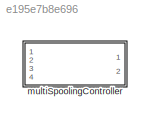
MODEL slx_e195e7b8e696
KIND library
CONFIG AbsTol = auto
CONFIG EnableMultiTasking = off
CONFIG FixedStep = auto
CONFIG MaxStep = auto
CONFIG MinStep = auto
CONFIG RelTol = 1e-3
CONFIG SampleTimeConstraint = Unconstrained
CONFIG Solver = VariableStepAuto
CONFIG SolverName = VariableStepAuto
CONFIG StartTime = 0.0
CONFIG StopTime = 10.0
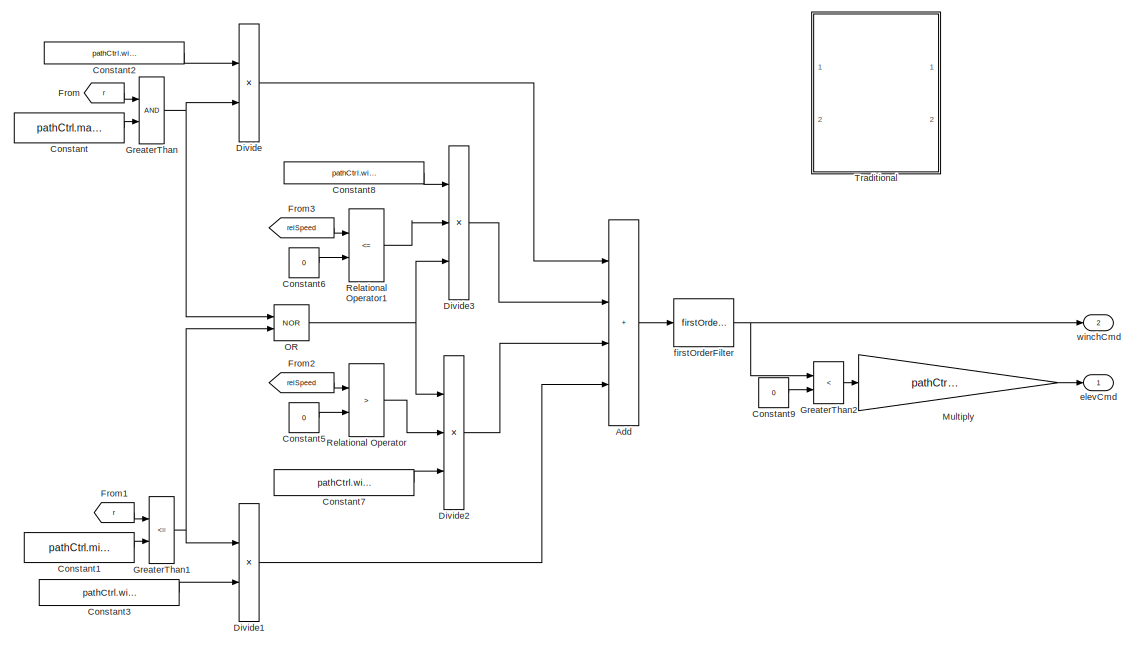
[diagram: multiSpoolingController - part 1/2, center side, full height]
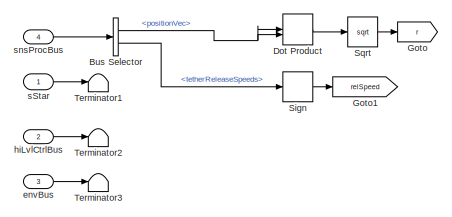
[diagram: multiSpoolingController - part 2/2, middle left region]
BLOCK [SubSystem] multiSpoolingController
  Ports = [4, 2]
  RequestExecContextInheritance = off
BLOCK [Sum] multiSpoolingController/Add
  IconShape = rectangular
  Inputs = ++++
  Ports = [4, 1]
BLOCK [BusSelector] multiSpoolingController/Bus Selector
  OutputSignals = positionVec,tetherReleaseSpeeds
  Ports = [1, 2]
BLOCK [Constant] multiSpoolingController/Constant
  Value = pathCtrl.maxR.Value
BLOCK [Constant] multiSpoolingController/Constant1
  Value = pathCtrl.minR.Value
BLOCK [Constant] multiSpoolingController/Constant2
  Value = pathCtrl.winchSpeedIn.Value
BLOCK [Constant] multiSpoolingController/Constant3
  Value = pathCtrl.winchSpeedOut.Value
BLOCK [Constant] multiSpoolingController/Constant5
  Value = 0
BLOCK [Constant] multiSpoolingController/Constant6
  Value = 0
BLOCK [Constant] multiSpoolingController/Constant7
  Value = pathCtrl.winchSpeedOut.Value
BLOCK [Constant] multiSpoolingController/Constant8
  Value = pathCtrl.winchSpeedIn.Value
BLOCK [Constant] multiSpoolingController/Constant9
  Value = 0
BLOCK [Product] multiSpoolingController/Divide
  Inputs = **
  OutDataTypeStr = double
  Ports = [2, 1]
BLOCK [Product] multiSpoolingController/Divide1
  Inputs = **
  OutDataTypeStr = double
  Ports = [2, 1]
BLOCK [Product] multiSpoolingController/Divide2
  Inputs = ***
  OutDataTypeStr = double
  Ports = [3, 1]
BLOCK [Product] multiSpoolingController/Divide3
  Inputs = ***
  OutDataTypeStr = double
  Ports = [3, 1]
BLOCK [DotProduct] multiSpoolingController/Dot Product
  OutDataTypeStr = Inherit: Inherit via internal rule
BLOCK [From] multiSpoolingController/From
  GotoTag = r
BLOCK [From] multiSpoolingController/From1
  GotoTag = r
BLOCK [From] multiSpoolingController/From2
  GotoTag = relSpeed
BLOCK [From] multiSpoolingController/From3
  GotoTag = relSpeed
BLOCK [Goto] multiSpoolingController/Goto
  GotoTag = r
BLOCK [Goto] multiSpoolingController/Goto1
  GotoTag = relSpeed
BLOCK [RelationalOperator] multiSpoolingController/GreaterThan
  InputSameDT = off
  OutDataTypeStr = boolean
  Ports = [2, 1]
  RndMeth = Simplest
BLOCK [RelationalOperator] multiSpoolingController/GreaterThan1
  InputSameDT = off
  Operator = <=
  OutDataTypeStr = boolean
  Ports = [2, 1]
  RndMeth = Simplest
BLOCK [RelationalOperator] multiSpoolingController/GreaterThan2
  InputSameDT = off
  Operator = <
  OutDataTypeStr = boolean
  Ports = [2, 1]
  RndMeth = Simplest
BLOCK [Gain] multiSpoolingController/Multiply
  Gain = pathCtrl.elevatorReelInDef.Value
  OutDataTypeStr = double
BLOCK [Logic] multiSpoolingController/OR
  AllPortsSameDT = off
  Operator = NOR
  OutDataTypeStr = boolean
  Ports = [2, 1]
BLOCK [RelationalOperator] multiSpoolingController/Relational Operator
  InputSameDT = off
  Operator = >
  OutDataTypeStr = boolean
  Ports = [2, 1]
  RndMeth = Simplest
BLOCK [RelationalOperator] multiSpoolingController/Relational Operator1
  InputSameDT = off
  Operator = <=
  OutDataTypeStr = boolean
  Ports = [2, 1]
  RndMeth = Simplest
BLOCK [Signum] multiSpoolingController/Sign
BLOCK [Sqrt] multiSpoolingController/Sqrt
BLOCK [Terminator] multiSpoolingController/Terminator1
BLOCK [Terminator] multiSpoolingController/Terminator2
BLOCK [Terminator] multiSpoolingController/Terminator3
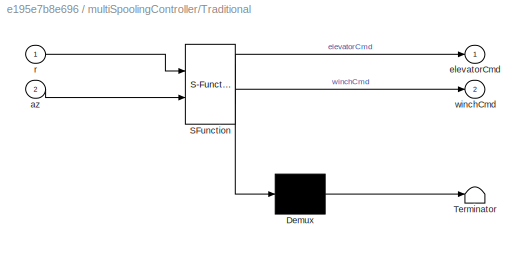
BLOCK [SubSystem] multiSpoolingController/Traditional
  Commented = on
  ErrorFcn = Stateflow.Translate.translate
  PermitHierarchicalResolution = ExplicitOnly
  Ports = [2, 2]
  RequestExecContextInheritance = off
  SFBlockType = Chart
  TreatAsAtomicUnit = on
BLOCK [Demux] multiSpoolingController/Traditional/ Demux 
  Outputs = 1
  Ports = [1, 1]
BLOCK [S-Function] multiSpoolingController/Traditional/ SFunction 
  EnableBusSupport = off
  FunctionName = sf_sfun
  Parameters = elevatorReelInDef,maxR,minR,winchSpeedIn,winchSpeedOut
  PortCounts = [2 3]
  Ports = [2, 3]
  SFcnIsStateOwnerBlock = off
  SFunctionDeploymentMode = off
  Tag = Stateflow S-Function 3
BLOCK [Terminator] multiSpoolingController/Traditional/ Terminator 
BLOCK [Inport] multiSpoolingController/Traditional/az
  Port = 2
BLOCK [Outport] multiSpoolingController/Traditional/elevatorCmd
  VectorParamsAs1DForOutWhenUnconnected = off
BLOCK [Inport] multiSpoolingController/Traditional/r
BLOCK [Outport] multiSpoolingController/Traditional/winchCmd
  Port = 2
  VectorParamsAs1DForOutWhenUnconnected = off
BLOCK [Outport] multiSpoolingController/elevCmd
  VectorParamsAs1DForOutWhenUnconnected = off
BLOCK [Inport] multiSpoolingController/envBus
  OutDataTypeStr = Bus: envBus
  Port = 3
BLOCK [Reference] multiSpoolingController/firstOrderFilter  REF=firstOrderFilter_ul/firstOrderFilter
  Ports = [1, 1]
  SourceBlock = firstOrderFilter_ul/firstOrderFilter
BLOCK [Inport] multiSpoolingController/hiLvlCtrlBus
  OutDataTypeStr = Bus: hiLvlCtrlBus
  Port = 2
BLOCK [Inport] multiSpoolingController/sStar 
BLOCK [Inport] multiSpoolingController/snsProcBus
  OutDataTypeStr = Bus: sensorsProcessingBus
  Port = 4
BLOCK [Outport] multiSpoolingController/winchCmd 
  Port = 2
  VectorParamsAs1DForOutWhenUnconnected = off
LINE multiSpoolingController/Add:1 -> multiSpoolingController/firstOrderFilter:1
NET multiSpoolingController/Bus Selector:1 -> multiSpoolingController/Dot Product:1, multiSpoolingController/Dot Product:2
LINE multiSpoolingController/Bus Selector:2 -> multiSpoolingController/Sign:1
LINE multiSpoolingController/Constant1:1 -> multiSpoolingController/GreaterThan1:2
LINE multiSpoolingController/Constant2:1 -> multiSpoolingController/Divide:1
LINE multiSpoolingController/Constant3:1 -> multiSpoolingController/Divide1:2
LINE multiSpoolingController/Constant5:1 -> multiSpoolingController/Relational Operator:2
LINE multiSpoolingController/Constant6:1 -> multiSpoolingController/Relational Operator1:2
LINE multiSpoolingController/Constant7:1 -> multiSpoolingController/Divide2:3
LINE multiSpoolingController/Constant8:1 -> multiSpoolingController/Divide3:1
LINE multiSpoolingController/Constant9:1 -> multiSpoolingController/GreaterThan2:2
LINE multiSpoolingController/Constant:1 -> multiSpoolingController/GreaterThan:2
LINE multiSpoolingController/Divide1:1 -> multiSpoolingController/Add:4
LINE multiSpoolingController/Divide2:1 -> multiSpoolingController/Add:3
LINE multiSpoolingController/Divide3:1 -> multiSpoolingController/Add:2
LINE multiSpoolingController/Divide:1 -> multiSpoolingController/Add:1
LINE multiSpoolingController/Dot Product:1 -> multiSpoolingController/Sqrt:1
LINE multiSpoolingController/From1:1 -> multiSpoolingController/GreaterThan1:1
LINE multiSpoolingController/From2:1 -> multiSpoolingController/Relational Operator:1
LINE multiSpoolingController/From3:1 -> multiSpoolingController/Relational Operator1:1
LINE multiSpoolingController/From:1 -> multiSpoolingController/GreaterThan:1
NET multiSpoolingController/GreaterThan1:1 -> multiSpoolingController/Divide1:1, multiSpoolingController/OR:2
LINE multiSpoolingController/GreaterThan2:1 -> multiSpoolingController/Multiply:1
NET multiSpoolingController/GreaterThan:1 -> multiSpoolingController/Divide:2, multiSpoolingController/OR:1
LINE multiSpoolingController/Multiply:1 -> multiSpoolingController/elevCmd:1
NET multiSpoolingController/OR:1 -> multiSpoolingController/Divide2:1, multiSpoolingController/Divide3:3
LINE multiSpoolingController/Relational Operator1:1 -> multiSpoolingController/Divide3:2
LINE multiSpoolingController/Relational Operator:1 -> multiSpoolingController/Divide2:2
LINE multiSpoolingController/Sign:1 -> multiSpoolingController/Goto1:1
LINE multiSpoolingController/Sqrt:1 -> multiSpoolingController/Goto:1
LINE multiSpoolingController/envBus:1 -> multiSpoolingController/Terminator3:1
NET multiSpoolingController/firstOrderFilter:1 -> multiSpoolingController/GreaterThan2:1, multiSpoolingController/winchCmd :1
LINE multiSpoolingController/hiLvlCtrlBus:1 -> multiSpoolingController/Terminator2:1
LINE multiSpoolingController/sStar :1 -> multiSpoolingController/Terminator1:1
LINE multiSpoolingController/snsProcBus:1 -> multiSpoolingController/Bus Selector:1
note: NET lines group one-source signal fan-out (src -> all destinations, sorted); 1:1 wires keep LINE
CHART multiSpoolingController/Traditional states=2 transitions=3
  STATE_LABEL 'SpoolOut\nentry:\nwinchCmd = winchSpeedOut;\nelevatorCmd = 0;\n'
  STATE_LABEL 'SpoolIn\nwinchCmd = winchSpeedIn;\nelevatorCmd = elevatorReelInDef;'
CHART  states=0 transitions=0
